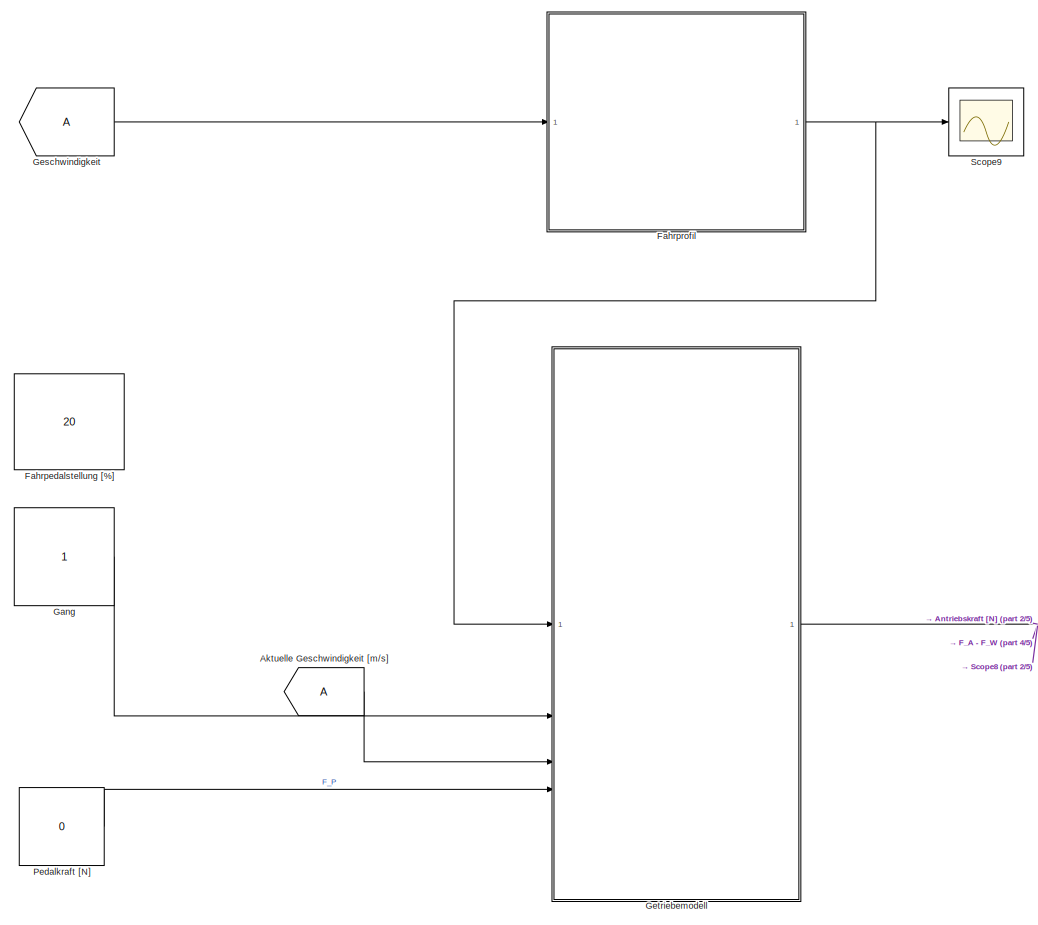
[diagram: root canvas - part 1/5, top left region]
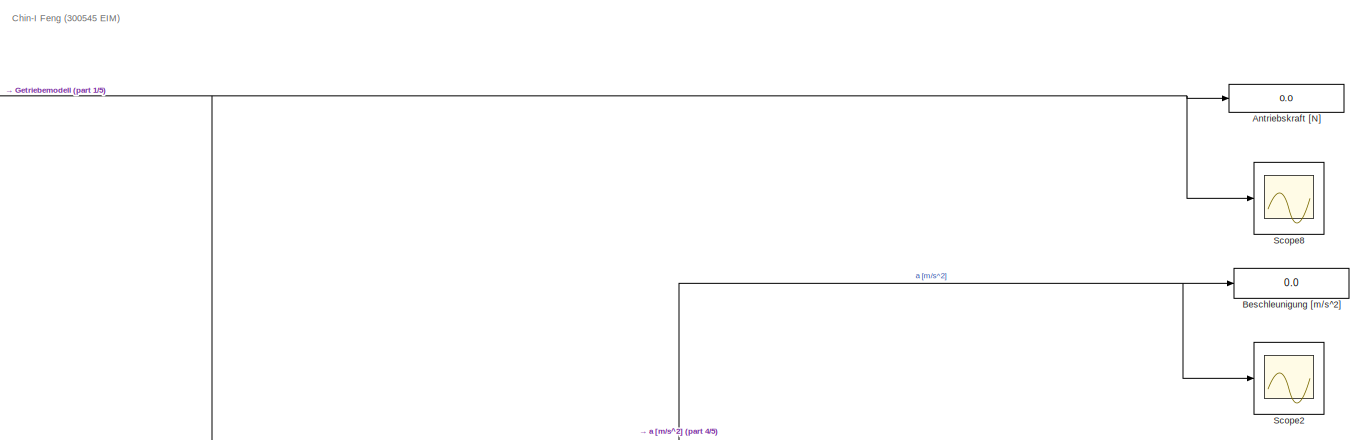
[diagram: root canvas - part 2/5, middle right region]
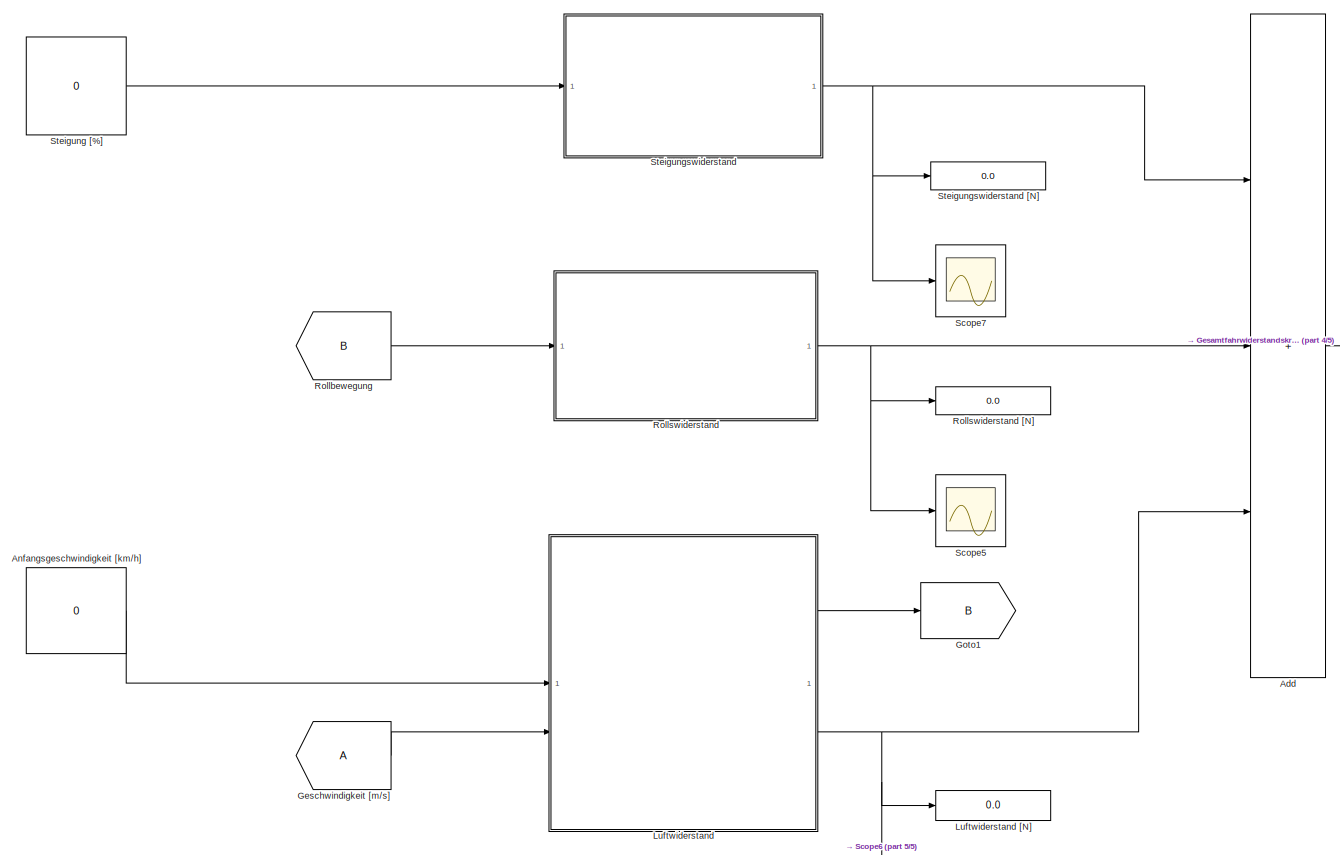
[diagram: root canvas - part 3/5, bottom left region]
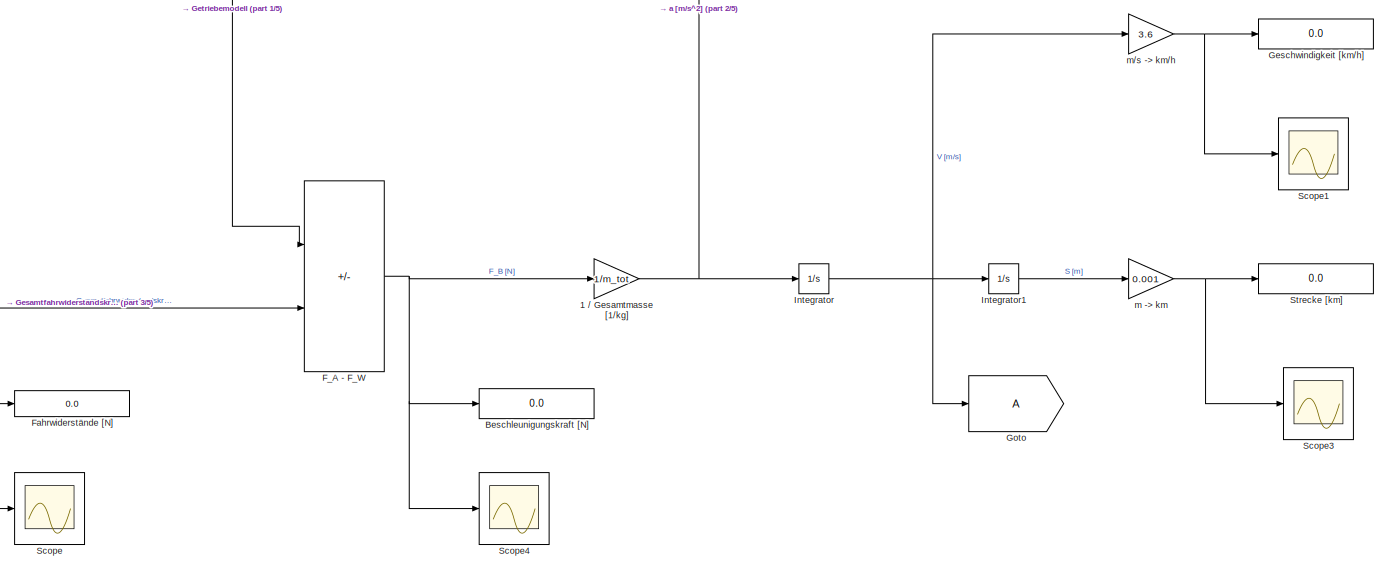
[diagram: root canvas - part 4/5, middle right region]
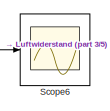
[diagram: root canvas - part 5/5, bottom center region]
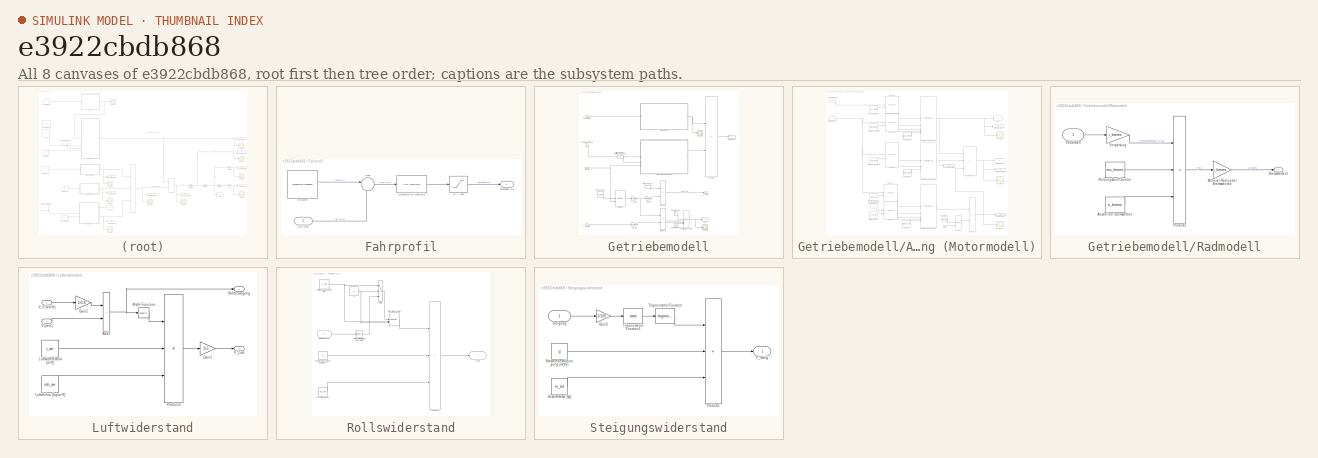
[diagram: thumbnail index - all 8 canvases of the model, root first then tree order]
MODEL slx_e3922cbdb868
KIND model
CONFIG AbsTol = auto
CONFIG EnableMultiTasking = off
CONFIG FixedStep = ts
CONFIG InitFcn = vehicle_parameter_Mercedes_A180
CONFIG MaxStep = auto
CONFIG MinStep = auto
CONFIG RelTol = 1e-3
CONFIG SampleTimeConstraint = Unconstrained
CONFIG SolverName = FixedStepAuto
CONFIG StartTime = 0.0
CONFIG StopTime = 500.0
BLOCK [Gain] 1 // Gesamtmasse [1//kg]
  Gain = 1/m_tot
BLOCK [Sum] Add
  IconShape = rectangular
  Inputs = +++
BLOCK [From] Aktuelle Geschwindigkeit [m//s]
BLOCK [Constant] Anfangsgeschwindigkeit [km//h]
  SampleTime = 1
  Value = 0
BLOCK [Display] Antriebskraft [N]
  Decimation = 1
BLOCK [Display] Beschleunigung [m//s^2]
  Decimation = 1
BLOCK [Display] Beschleunigungskraft [N]
  Decimation = 1
BLOCK [Sum] F_A - F_W
  IconShape = rectangular
  Inputs = +-
BLOCK [Constant] Fahrpedalstellung [%]
  SampleTime = 1
  Value = 20
BLOCK [SubSystem] Fahrprofil
BLOCK [Reference] Fahrprofil/Discrete PID Controller  REF=slpidlib/PID Controller
  LibrarySourceBlock = simulink/Discrete/Discrete PID Controller
  SourceBlock = slpidlib/PID Controller
  SourceType = PID 1dof
BLOCK [Outport] Fahrprofil/Fahrpedal [%]
BLOCK [Reference] Fahrprofil/Sollprofil  REF=simulink/Sources/Repeating
Sequence
  SourceBlock = simulink/Sources/Repeating\nSequence
  SourceType = Repeating table
BLOCK [Sum] Fahrprofil/Sum
  Inputs = |+-
BLOCK [Saturate] Fahrprofil/[0 ,,, 100]
  LowerLimit = 0
  UpperLimit = 100
BLOCK [Inport] Fahrprofil/v_ist [m//s]
BLOCK [Display] Fahrwiderstände [N]
  Decimation = 1
BLOCK [Constant] Gang
  SampleTime = 1
BLOCK [From] Geschwindigkeit
BLOCK [Display] Geschwindigkeit [km//h]
  Decimation = 1
BLOCK [From] Geschwindigkeit [m//s]
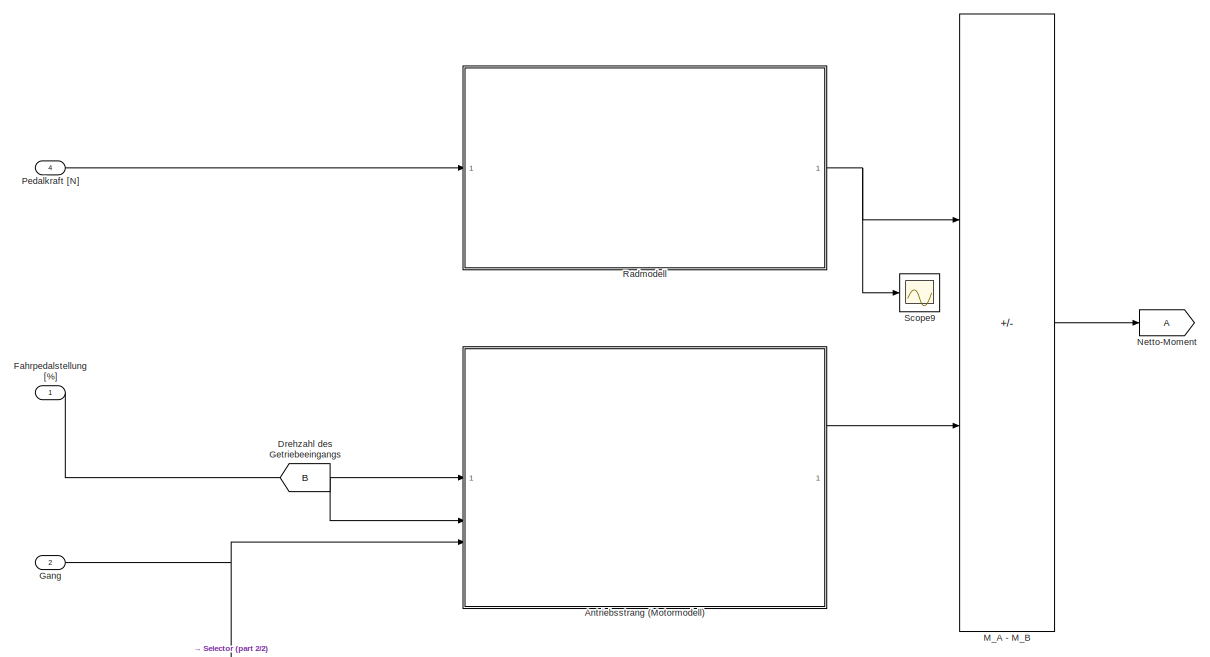
[diagram: Getriebemodell - part 1/2, full width, top band]
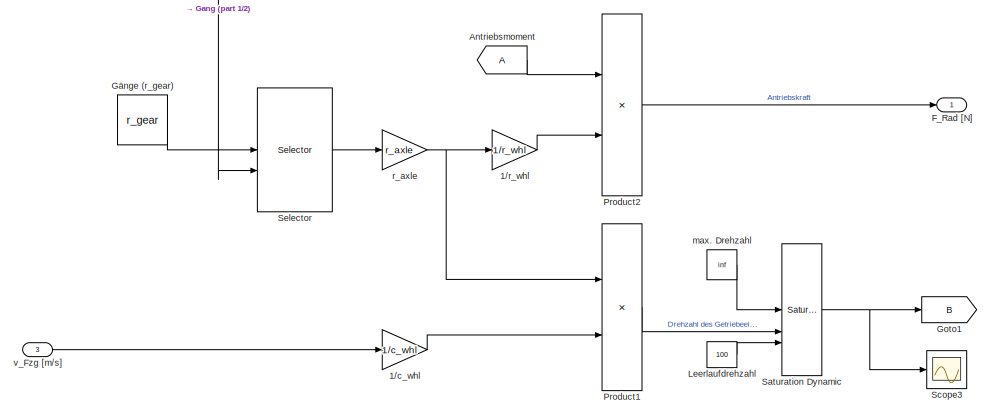
[diagram: Getriebemodell - part 2/2, full width, bottom band]
BLOCK [SubSystem] Getriebemodell
BLOCK [Gain] Getriebemodell/1//c_whl
  Gain = 1/c_whl
BLOCK [Gain] Getriebemodell/1//r_whl
  Gain = 1/r_whl
BLOCK [From] Getriebemodell/Antriebsmoment
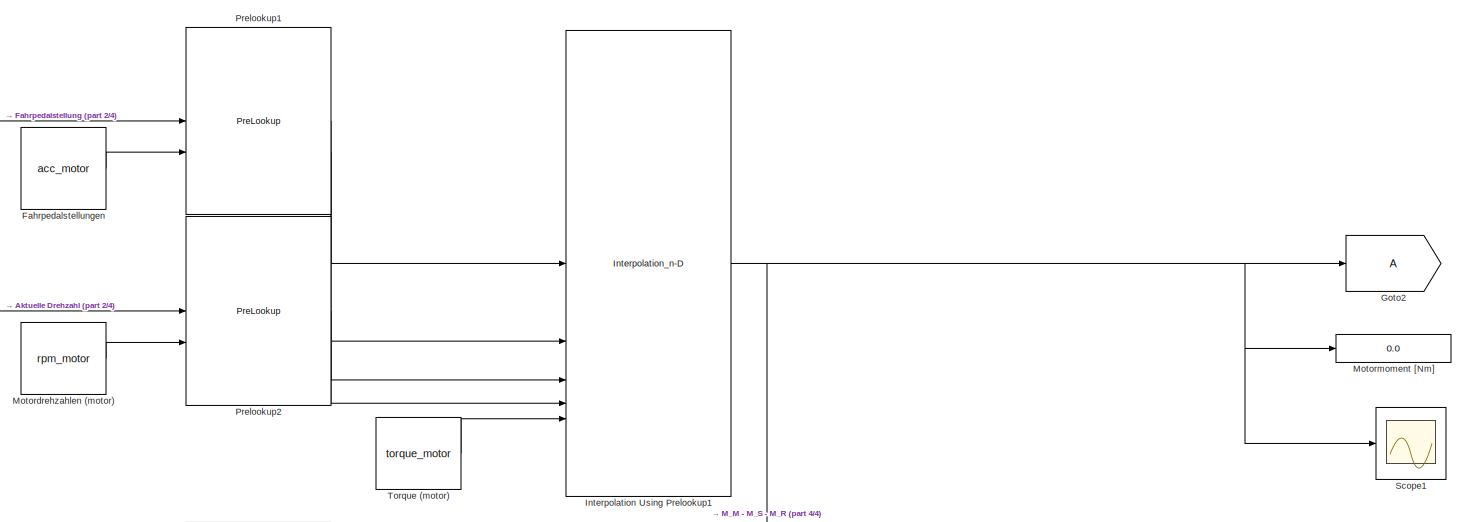
[diagram: Getriebemodell/Antriebsstrang (Motormodell) - part 1/4, full width, top band]
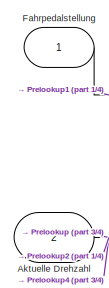
[diagram: Getriebemodell/Antriebsstrang (Motormodell) - part 2/4, top left region]
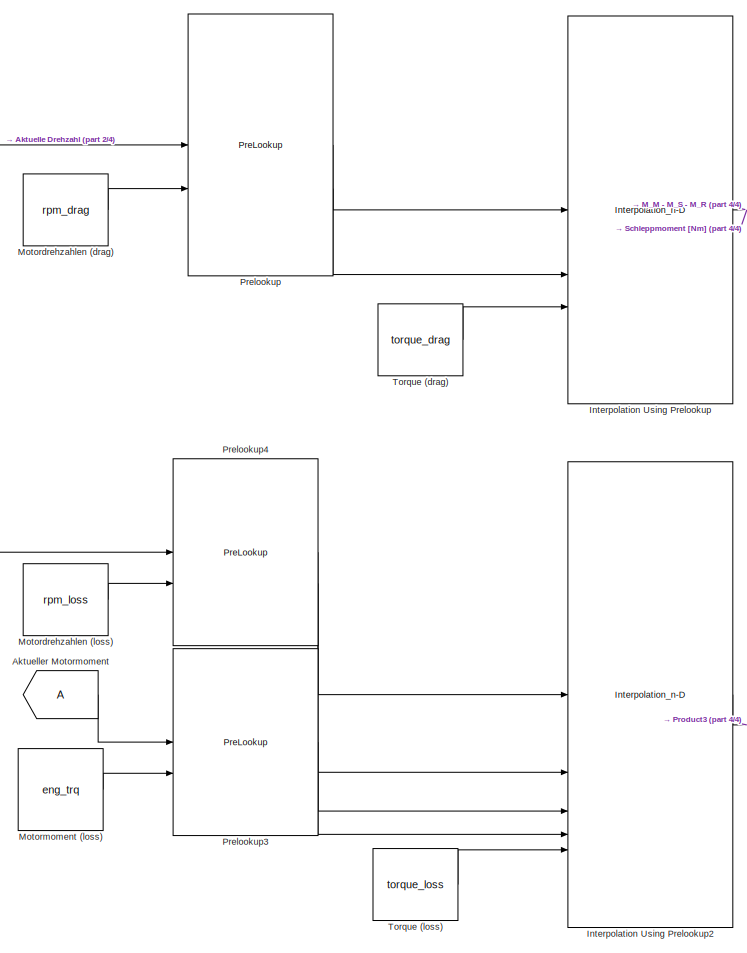
[diagram: Getriebemodell/Antriebsstrang (Motormodell) - part 3/4, central region]
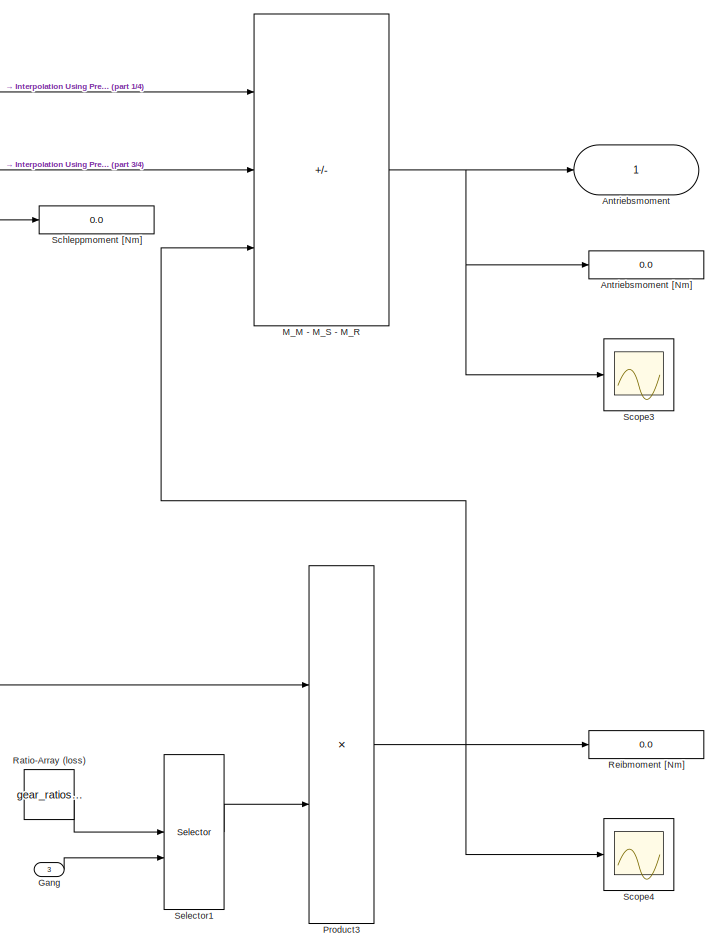
[diagram: Getriebemodell/Antriebsstrang (Motormodell) - part 4/4, bottom right region]
BLOCK [SubSystem] Getriebemodell/Antriebsstrang (Motormodell)
BLOCK [Inport] Getriebemodell/Antriebsstrang (Motormodell)/Aktuelle Drehzahl
  Port = 2
BLOCK [From] Getriebemodell/Antriebsstrang (Motormodell)/Aktueller Motormoment
BLOCK [Outport] Getriebemodell/Antriebsstrang (Motormodell)/Antriebsmoment 
BLOCK [Display] Getriebemodell/Antriebsstrang (Motormodell)/Antriebsmoment [Nm]
  Decimation = 1
BLOCK [Inport] Getriebemodell/Antriebsstrang (Motormodell)/Fahrpedalstellung
BLOCK [Constant] Getriebemodell/Antriebsstrang (Motormodell)/Fahrpedalstellungen
  SampleTime = 1
  Value = acc_motor
BLOCK [Inport] Getriebemodell/Antriebsstrang (Motormodell)/Gang
  Port = 3
BLOCK [Goto] Getriebemodell/Antriebsstrang (Motormodell)/Goto2
BLOCK [Interpolation_n-D] Getriebemodell/Antriebsstrang (Motormodell)/Interpolation Using Prelookup
  InputPortMap = u0,u1,p2
  IntermediateResultsDataTypeStr = Inherit: Inherit via internal rule
  InternalRulePriority = Speed
  NumberOfTableDimensions = 1
  TableSource = Input port
  ValidIndexMayReachLast = on
BLOCK [Interpolation_n-D] Getriebemodell/Antriebsstrang (Motormodell)/Interpolation Using Prelookup1
  InputPortMap = u0,u1,u2,u3,p2
  IntermediateResultsDataTypeStr = Inherit: Inherit via internal rule
  InternalRulePriority = Speed
  TableSource = Input port
BLOCK [Interpolation_n-D] Getriebemodell/Antriebsstrang (Motormodell)/Interpolation Using Prelookup2
  InputPortMap = u0,u1,u2,u3,p2
  IntermediateResultsDataTypeStr = Inherit: Inherit via internal rule
  InternalRulePriority = Speed
  TableSource = Input port
BLOCK [Sum] Getriebemodell/Antriebsstrang (Motormodell)/M_M - M_S - M_R
  IconShape = rectangular
  Inputs = +--
BLOCK [Constant] Getriebemodell/Antriebsstrang (Motormodell)/Motordrehzahlen (drag)
  SampleTime = 1
  Value = rpm_drag
BLOCK [Constant] Getriebemodell/Antriebsstrang (Motormodell)/Motordrehzahlen (loss)
  SampleTime = 1
  Value = rpm_loss
BLOCK [Constant] Getriebemodell/Antriebsstrang (Motormodell)/Motordrehzahlen (motor)
  SampleTime = 1
  Value = rpm_motor
BLOCK [Constant] Getriebemodell/Antriebsstrang (Motormodell)/Motormoment (loss)
  SampleTime = 1
  Value = eng_trq
BLOCK [Display] Getriebemodell/Antriebsstrang (Motormodell)/Motormoment [Nm]
  Decimation = 1
BLOCK [PreLookup] Getriebemodell/Antriebsstrang (Motormodell)/Prelookup
  BeginIndexSearchUsingPreviousIndexResult = on
  BreakpointsData = [10:10:110]
  BreakpointsDataSource = Input port
  ExtrapMethod = Linear
  InputPortMap = u0,p1
BLOCK [PreLookup] Getriebemodell/Antriebsstrang (Motormodell)/Prelookup1
  BeginIndexSearchUsingPreviousIndexResult = on
  BreakpointsData = [10:10:110]
  BreakpointsDataSource = Input port
  InputPortMap = u0,p1
  UseLastBreakpoint = on
BLOCK [PreLookup] Getriebemodell/Antriebsstrang (Motormodell)/Prelookup2
  BeginIndexSearchUsingPreviousIndexResult = on
  BreakpointsData = [10:10:110]
  BreakpointsDataSource = Input port
  InputPortMap = u0,p1
BLOCK [PreLookup] Getriebemodell/Antriebsstrang (Motormodell)/Prelookup3
  BeginIndexSearchUsingPreviousIndexResult = on
  BreakpointsData = [10:10:110]
  BreakpointsDataSource = Input port
  InputPortMap = u0,p1
  UseLastBreakpoint = on
BLOCK [PreLookup] Getriebemodell/Antriebsstrang (Motormodell)/Prelookup4
  BeginIndexSearchUsingPreviousIndexResult = on
  BreakpointsData = [10:10:110]
  BreakpointsDataSource = Input port
  InputPortMap = u0,p1
  UseLastBreakpoint = on
BLOCK [Product] Getriebemodell/Antriebsstrang (Motormodell)/Product3
BLOCK [Constant] Getriebemodell/Antriebsstrang (Motormodell)/Ratio-Array (loss)
  SampleTime = 1
  Value = gear_ratios_to_neutral
BLOCK [Display] Getriebemodell/Antriebsstrang (Motormodell)/Reibmoment [Nm]
  Decimation = 1
BLOCK [Display] Getriebemodell/Antriebsstrang (Motormodell)/Schleppmoment [Nm]
  Decimation = 1
BLOCK [Scope] Getriebemodell/Antriebsstrang (Motormodell)/Scope1
  Floating = off
  NumInputPorts = 1
  ScopeSpecificationString = Simulink.scopes.TimeScopeBlockCfg('CurrentConfiguration', extmgr.ConfigurationSet(extmgr.Configuration('Core','General UI',true),extmgr.Configuration('Core','Source UI',true),extmgr.Configuration('Sources','WiredSimulink',true,'DataLoggingVariableName','ScopeData2'),extmgr.Configuration('Visuals','Time Domain',true,'SerializedDisplays',{struct('MinYLimReal','7.56414','MaxYLimReal','139.15954','YLa...<+1603ch>
BLOCK [Scope] Getriebemodell/Antriebsstrang (Motormodell)/Scope3
  Floating = off
  NumInputPorts = 1
  ScopeSpecificationString = Simulink.scopes.TimeScopeBlockCfg('CurrentConfiguration', extmgr.ConfigurationSet(extmgr.Configuration('Core','General UI',true),extmgr.Configuration('Core','Source UI',true),extmgr.Configuration('Sources','WiredSimulink',true,'DataLoggingVariableName','ScopeData5'),extmgr.Configuration('Visuals','Time Domain',true,'SerializedDisplays',{struct('MinYLimReal','-3.73503','MaxYLimReal','127.35349','YL...<+1590ch>
BLOCK [Scope] Getriebemodell/Antriebsstrang (Motormodell)/Scope4
  Floating = off
  NumInputPorts = 1
  ScopeSpecificationString = Simulink.scopes.TimeScopeBlockCfg('CurrentConfiguration', extmgr.ConfigurationSet(extmgr.Configuration('Core','General UI',true),extmgr.Configuration('Core','Source UI',true),extmgr.Configuration('Sources','WiredSimulink',true,'DataLoggingVariableName','ScopeData4'),extmgr.Configuration('Visuals','Time Domain',true,'SerializedDisplays',{struct('MinYLimReal','-3.73503','MaxYLimReal','127.35349','YL...<+1589ch>
BLOCK [Selector] Getriebemodell/Antriebsstrang (Motormodell)/Selector1
  IndexMode = Zero-based
  IndexOptions = Index vector (port)
  Indices = 1
  InputPortWidth = 8
  OutputSizes = 1
BLOCK [Constant] Getriebemodell/Antriebsstrang (Motormodell)/Torque (drag)
  SampleTime = 1
  Value = torque_drag
BLOCK [Constant] Getriebemodell/Antriebsstrang (Motormodell)/Torque (loss)
  SampleTime = 1
  Value = torque_loss
BLOCK [Constant] Getriebemodell/Antriebsstrang (Motormodell)/Torque (motor)
  SampleTime = 1
  Value = torque_motor
BLOCK [From] Getriebemodell/Drehzahl des Getriebeeingangs
  GotoTag = B
BLOCK [Outport] Getriebemodell/F_Rad [N]
BLOCK [Inport] Getriebemodell/Fahrpedalstellung [%]
BLOCK [Inport] Getriebemodell/Gang
  Port = 2
BLOCK [Goto] Getriebemodell/Goto1
  GotoTag = B
BLOCK [Constant] Getriebemodell/Gänge (r_gear)
  SampleTime = 1
  Value = r_gear
BLOCK [Constant] Getriebemodell/Leerlaufdrehzahl
  SampleTime = 1
  Value = 100
BLOCK [Sum] Getriebemodell/M_A - M_B
  IconShape = rectangular
  Inputs = -+
BLOCK [Goto] Getriebemodell/Netto-Moment
BLOCK [Inport] Getriebemodell/Pedalkraft [N]
  Port = 4
BLOCK [Product] Getriebemodell/Product1
BLOCK [Product] Getriebemodell/Product2
BLOCK [SubSystem] Getriebemodell/Radmodell
BLOCK [Constant] Getriebemodell/Radmodell/Anzahl der Bremskolben
  SampleTime = 1
  Value = n_brems
BLOCK [Outport] Getriebemodell/Radmodell/Bremsmoment
BLOCK [Gain] Getriebemodell/Radmodell/Mittlerer Radius der Bremsscheibe
  Gain = r_brems
BLOCK [Inport] Getriebemodell/Radmodell/Pedalkraft
BLOCK [Product] Getriebemodell/Radmodell/Product3
  Inputs = 3
BLOCK [Constant] Getriebemodell/Radmodell/Reibungskoeffizienten
  SampleTime = 1
  Value = mu_brems
BLOCK [Gain] Getriebemodell/Radmodell/Verstärkung
  Gain = i_brems
BLOCK [Reference] Getriebemodell/Saturation Dynamic  REF=simulink/Discontinuities/Saturation
Dynamic
  SourceBlock = simulink/Discontinuities/Saturation\nDynamic
  SourceType = Saturation Dynamic
BLOCK [Scope] Getriebemodell/Scope3
  Floating = off
  NumInputPorts = 1
  ScopeSpecificationString = Simulink.scopes.TimeScopeBlockCfg('CurrentConfiguration', extmgr.ConfigurationSet(extmgr.Configuration('Core','General UI',true),extmgr.Configuration('Core','Source UI',true),extmgr.Configuration('Sources','WiredSimulink',true,'DataLoggingVariableName','ScopeData6'),extmgr.Configuration('Visuals','Time Domain',true,'SerializedDisplays',{struct('MinYLimReal','7.96997','MaxYLimReal','928.27025','YLa...<+1624ch>
BLOCK [Scope] Getriebemodell/Scope9
  Floating = off
  NumInputPorts = 1
  ScopeSpecificationString = Simulink.scopes.TimeScopeBlockCfg('CurrentConfiguration', extmgr.ConfigurationSet(extmgr.Configuration('Core','General UI',true),extmgr.Configuration('Core','Source UI',true),extmgr.Configuration('Sources','WiredSimulink',true,'DataLoggingVariableName','ScopeData2'),extmgr.Configuration('Visuals','Time Domain',true,'SerializedDisplays',{struct('MinYLimReal','-1.00000','MaxYLimReal','1.00000','YLab...<+1609ch>
BLOCK [Selector] Getriebemodell/Selector
  IndexMode = Zero-based
  IndexOptions = Index vector (port)
  Indices = 1
  InputPortWidth = 8
  OutputSizes = 1
BLOCK [Constant] Getriebemodell/max. Drehzahl
  SampleTime = 1
  Value = inf
BLOCK [Gain] Getriebemodell/r_axle
  Gain = r_axle
BLOCK [Inport] Getriebemodell/v_Fzg [m//s]
  Port = 3
BLOCK [Goto] Goto
BLOCK [Goto] Goto1
  GotoTag = B
BLOCK [Integrator] Integrator
BLOCK [Integrator] Integrator1
BLOCK [SubSystem] Luftwiderstand
BLOCK [Display] Luftwiderstand [N] 
  Decimation = 1
BLOCK [Sum] Luftwiderstand/Add3
  IconShape = rectangular
BLOCK [Outport] Luftwiderstand/F_Luft
  Port = 2
BLOCK [Gain] Luftwiderstand/Gain1
  Gain = 0.5
BLOCK [Gain] Luftwiderstand/Gain2
  Gain = 1/3.6
BLOCK [Constant] Luftwiderstand/Luftdichte [kg//m^3]
  SampleTime = 1
  Value = roh_air
BLOCK [Constant] Luftwiderstand/Luftwiderstand [m^2]
  SampleTime = 1
  Value = r_air
BLOCK [Math] Luftwiderstand/Math Function
  Operator = magnitude^2
BLOCK [Product] Luftwiderstand/Product3
  Inputs = 3
BLOCK [Outport] Luftwiderstand/Rollbewegung
BLOCK [Inport] Luftwiderstand/V [m//s]
  Port = 2
BLOCK [Inport] Luftwiderstand/V_0 [km//h]
BLOCK [Constant] Pedalkraft [N]
  SampleTime = 1
  Value = 0
BLOCK [From] Rollbewegung
  GotoTag = B
BLOCK [SubSystem] Rollswiderstand
BLOCK [Display] Rollswiderstand [N]
  Decimation = 1
BLOCK [Constant] Rollswiderstand/0
  SampleTime = 1
  Value = 0
BLOCK [Outport] Rollswiderstand/F_Roll
BLOCK [Constant] Rollswiderstand/Gesamtmasse [kg]
  SampleTime = 1
  Value = m_tot
BLOCK [Reference] Rollswiderstand/Gibt es Rollbewegung der Reifen?  REF=simulink/Logic and Bit
Operations/Compare
To Constant
  SourceBlock = simulink/Logic and Bit\nOperations/Compare\nTo Constant
  SourceType = Compare To Constant
BLOCK [Product] Rollswiderstand/Product3
  Inputs = 3
BLOCK [Inport] Rollswiderstand/Rollbewegung?
BLOCK [Constant] Rollswiderstand/Rollwiderstandskoeffizient
  SampleTime = 1
  Value = r_roll
BLOCK [Reference] Rollswiderstand/Saturation Dynamic  REF=simulink/Discontinuities/Saturation
Dynamic
  SourceBlock = simulink/Discontinuities/Saturation\nDynamic
  SourceType = Saturation Dynamic
BLOCK [Constant] Rollswiderstand/Schwerebeschleunigung [m//s^2]
  SampleTime = 1
  Value = g
BLOCK [Switch] Rollswiderstand/Switch
  Criteria = u2 > Threshold
  InputSameDT = off
  SaturateOnIntegerOverflow = off
BLOCK [Scope] Scope
  Floating = off
  NumInputPorts = 1
  ScopeSpecificationString = Simulink.scopes.TimeScopeBlockCfg('CurrentConfiguration', extmgr.ConfigurationSet(extmgr.Configuration('Core','General UI',true),extmgr.Configuration('Core','Source UI',true),extmgr.Configuration('Sources','WiredSimulink',true),extmgr.Configuration('Visuals','Time Domain',true,'SerializedDisplays',{struct('MinYLimReal','-434.40344','MaxYLimReal','3909.63094','YLabelReal','','MinYLimMag',' 0.00000'...<+1494ch>
BLOCK [Scope] Scope1
  Floating = off
  NumInputPorts = 1
  ScopeSpecificationString = Simulink.scopes.TimeScopeBlockCfg('CurrentConfiguration', extmgr.ConfigurationSet(extmgr.Configuration('Core','General UI',true),extmgr.Configuration('Core','Source UI',true),extmgr.Configuration('Sources','WiredSimulink',true,'DataLoggingVariableName','ScopeData1'),extmgr.Configuration('Visuals','Time Domain',true,'SerializedDisplays',{struct('MinYLimReal','-52.40242','MaxYLimReal','471.62177','Y...<+1632ch>
BLOCK [Scope] Scope2
  Floating = off
  NumInputPorts = 1
  ScopeSpecificationString = Simulink.scopes.TimeScopeBlockCfg('CurrentConfiguration', extmgr.ConfigurationSet(extmgr.Configuration('Core','General UI',true),extmgr.Configuration('Core','Source UI',true),extmgr.Configuration('Sources','WiredSimulink',true,'DataLoggingVariableName','ScopeData2'),extmgr.Configuration('Visuals','Time Domain',true,'SerializedDisplays',{struct('MinYLimReal','-3.3372','MaxYLimReal','2.22648','YLabe...<+1453ch>
BLOCK [Scope] Scope3
  Floating = off
  NumInputPorts = 1
  ScopeSpecificationString = Simulink.scopes.TimeScopeBlockCfg('CurrentConfiguration', extmgr.ConfigurationSet(extmgr.Configuration('Core','General UI',true),extmgr.Configuration('Core','Source UI',true),extmgr.Configuration('Sources','WiredSimulink',true,'DataLoggingVariableName','ScopeData3'),extmgr.Configuration('Visuals','Time Domain',true,'SerializedDisplays',{struct('MinYLimReal','-5.0441','MaxYLimReal','45.39693','YLab...<+1457ch>
BLOCK [Scope] Scope4
  Floating = off
  NumInputPorts = 1
  ScopeSpecificationString = Simulink.scopes.TimeScopeBlockCfg('CurrentConfiguration', extmgr.ConfigurationSet(extmgr.Configuration('Core','General UI',true),extmgr.Configuration('Core','Source UI',true),extmgr.Configuration('Sources','WiredSimulink',true,'DataLoggingVariableName','ScopeData4'),extmgr.Configuration('Visuals','Time Domain',true,'SerializedDisplays',{struct('MinYLimReal','-301.67865','MaxYLimReal','2715.10789',...<+1473ch>
BLOCK [Scope] Scope5
  Floating = off
  NumInputPorts = 1
  ScopeSpecificationString = Simulink.scopes.TimeScopeBlockCfg('CurrentConfiguration', extmgr.ConfigurationSet(extmgr.Configuration('Core','General UI',true),extmgr.Configuration('Core','Source UI',true),extmgr.Configuration('Sources','WiredSimulink',true,'DataLoggingVariableName','ScopeData1'),extmgr.Configuration('Visuals','Time Domain',true,'SerializedDisplays',{struct('MinYLimReal','-22.14914','MaxYLimReal','199.34227','Y...<+1592ch>
BLOCK [Scope] Scope6
  Floating = off
  NumInputPorts = 1
  ScopeSpecificationString = Simulink.scopes.TimeScopeBlockCfg('CurrentConfiguration', extmgr.ConfigurationSet(extmgr.Configuration('Core','General UI',true),extmgr.Configuration('Core','Source UI',true),extmgr.Configuration('Sources','WiredSimulink',true,'DataLoggingVariableName','ScopeData2'),extmgr.Configuration('Visuals','Time Domain',true,'SerializedDisplays',{struct('MinYLimReal','-606.13672','MaxYLimReal','5455.23051',...<+1601ch>
BLOCK [Scope] Scope7
  Floating = off
  NumInputPorts = 1
  ScopeSpecificationString = Simulink.scopes.TimeScopeBlockCfg('CurrentConfiguration', extmgr.ConfigurationSet(extmgr.Configuration('Core','General UI',true),extmgr.Configuration('Core','Source UI',true),extmgr.Configuration('Sources','WiredSimulink',true,'DataLoggingVariableName','ScopeData7'),extmgr.Configuration('Visuals','Time Domain',true,'SerializedDisplays',{struct('MinYLimReal','-1.00000','MaxYLimReal','1.00000','YLab...<+1586ch>
BLOCK [Scope] Scope8
  Floating = off
  NumInputPorts = 1
  ScopeSpecificationString = Simulink.scopes.TimeScopeBlockCfg('CurrentConfiguration', extmgr.ConfigurationSet(extmgr.Configuration('Core','General UI',true),extmgr.Configuration('Core','Source UI',true),extmgr.Configuration('Sources','WiredSimulink',true,'DataLoggingVariableName','ScopeData1'),extmgr.Configuration('Visuals','Time Domain',true,'SerializedDisplays',{struct('MinYLimReal','-1262.44797','MaxYLimReal','5867.78499'...<+1484ch>
BLOCK [Scope] Scope9
  Floating = off
  NumInputPorts = 1
  ScopeSpecificationString = Simulink.scopes.TimeScopeBlockCfg('CurrentConfiguration', extmgr.ConfigurationSet(extmgr.Configuration('Core','General UI',true),extmgr.Configuration('Core','Source UI',true),extmgr.Configuration('Sources','WiredSimulink',true,'DataLoggingVariableName','ScopeData1'),extmgr.Configuration('Visuals','Time Domain',true,'SerializedDisplays',{struct('MinYLimReal','-12.5','MaxYLimReal','112.5','YLabelRea...<+1596ch>
BLOCK [Constant] Steigung [%]
  SampleTime = 1
  Value = 0
BLOCK [SubSystem] Steigungswiderstand
BLOCK [Display] Steigungswiderstand [N]
  Decimation = 1
BLOCK [Outport] Steigungswiderstand/F_Steig
BLOCK [Gain] Steigungswiderstand/Gain3
  Gain = 1/100
BLOCK [Constant] Steigungswiderstand/Gesamtmasse [kg]
  SampleTime = 1
  Value = m_tot
BLOCK [Product] Steigungswiderstand/Product1
  Inputs = 3
BLOCK [Constant] Steigungswiderstand/Schwerebeschleunigung [m//s^2]
  SampleTime = 1
  Value = g
BLOCK [Inport] Steigungswiderstand/Steigung
BLOCK [Trigonometry] Steigungswiderstand/Trigonometric Function
BLOCK [Trigonometry] Steigungswiderstand/Trigonometric Function1
  Operator = atan
BLOCK [Display] Strecke [km]
  Decimation = 1
BLOCK [Gain] m -> km
  Gain = 0.001
BLOCK [Gain] m//s -> km//h
  Gain = 3.6
ANNOTATION (root): Chin-I Feng (300545 EIM)
NET 1 // Gesamtmasse [1//kg]:1 -> Beschleunigung [m//s^2]:1, Integrator:1, Scope2:1
NET Add:1 -> F_A - F_W:2, Fahrwiderstände [N]:1, Scope:1
LINE Aktuelle Geschwindigkeit [m//s]:1 -> Getriebemodell:3
LINE Anfangsgeschwindigkeit [km//h]:1 -> Luftwiderstand:1
NET F_A - F_W:1 -> 1 // Gesamtmasse [1//kg]:1, Beschleunigungskraft [N]:1, Scope4:1
LINE Fahrprofil/Discrete PID Controller:1 -> Fahrprofil/[0 ,,, 100]:1
LINE Fahrprofil/Sollprofil:1 -> Fahrprofil/Sum:1
LINE Fahrprofil/Sum:1 -> Fahrprofil/Discrete PID Controller:1
LINE Fahrprofil/[0 ,,, 100]:1 -> Fahrprofil/Fahrpedal [%]:1
LINE Fahrprofil/v_ist [m//s]:1 -> Fahrprofil/Sum:2
NET Fahrprofil:1 -> Getriebemodell:1, Scope9:1
LINE Gang:1 -> Getriebemodell:2
LINE Geschwindigkeit [m//s]:1 -> Luftwiderstand:2
LINE Geschwindigkeit:1 -> Fahrprofil:1
LINE Getriebemodell/1//c_whl:1 -> Getriebemodell/Product1:2
LINE Getriebemodell/1//r_whl:1 -> Getriebemodell/Product2:2
LINE Getriebemodell/Antriebsmoment:1 -> Getriebemodell/Product2:1
NET Getriebemodell/Antriebsstrang (Motormodell)/Aktuelle Drehzahl:1 -> Getriebemodell/Antriebsstrang (Motormodell)/Prelookup2:1, Getriebemodell/Antriebsstrang (Motormodell)/Prelookup4:1, Getriebemodell/Antriebsstrang (Motormodell)/Prelookup:1
LINE Getriebemodell/Antriebsstrang (Motormodell)/Aktueller Motormoment:1 -> Getriebemodell/Antriebsstrang (Motormodell)/Prelookup3:1
LINE Getriebemodell/Antriebsstrang (Motormodell)/Fahrpedalstellung:1 -> Getriebemodell/Antriebsstrang (Motormodell)/Prelookup1:1
LINE Getriebemodell/Antriebsstrang (Motormodell)/Fahrpedalstellungen:1 -> Getriebemodell/Antriebsstrang (Motormodell)/Prelookup1:2
LINE Getriebemodell/Antriebsstrang (Motormodell)/Gang:1 -> Getriebemodell/Antriebsstrang (Motormodell)/Selector1:2
NET Getriebemodell/Antriebsstrang (Motormodell)/Interpolation Using Prelookup1:1 -> Getriebemodell/Antriebsstrang (Motormodell)/Goto2:1, Getriebemodell/Antriebsstrang (Motormodell)/M_M - M_S - M_R:1, Getriebemodell/Antriebsstrang (Motormodell)/Motormoment [Nm]:1, Getriebemodell/Antriebsstrang (Motormodell)/Scope1:1
LINE Getriebemodell/Antriebsstrang (Motormodell)/Interpolation Using Prelookup2:1 -> Getriebemodell/Antriebsstrang (Motormodell)/Product3:1
NET Getriebemodell/Antriebsstrang (Motormodell)/Interpolation Using Prelookup:1 -> Getriebemodell/Antriebsstrang (Motormodell)/M_M - M_S - M_R:2, Getriebemodell/Antriebsstrang (Motormodell)/Schleppmoment [Nm]:1
NET Getriebemodell/Antriebsstrang (Motormodell)/M_M - M_S - M_R:1 -> Getriebemodell/Antriebsstrang (Motormodell)/Antriebsmoment :1, Getriebemodell/Antriebsstrang (Motormodell)/Antriebsmoment [Nm]:1, Getriebemodell/Antriebsstrang (Motormodell)/Scope3:1
LINE Getriebemodell/Antriebsstrang (Motormodell)/Motordrehzahlen (drag):1 -> Getriebemodell/Antriebsstrang (Motormodell)/Prelookup:2
LINE Getriebemodell/Antriebsstrang (Motormodell)/Motordrehzahlen (loss):1 -> Getriebemodell/Antriebsstrang (Motormodell)/Prelookup4:2
LINE Getriebemodell/Antriebsstrang (Motormodell)/Motordrehzahlen (motor):1 -> Getriebemodell/Antriebsstrang (Motormodell)/Prelookup2:2
LINE Getriebemodell/Antriebsstrang (Motormodell)/Motormoment (loss):1 -> Getriebemodell/Antriebsstrang (Motormodell)/Prelookup3:2
LINE Getriebemodell/Antriebsstrang (Motormodell)/Prelookup1:1 -> Getriebemodell/Antriebsstrang (Motormodell)/Interpolation Using Prelookup1:1
LINE Getriebemodell/Antriebsstrang (Motormodell)/Prelookup1:2 -> Getriebemodell/Antriebsstrang (Motormodell)/Interpolation Using Prelookup1:2
LINE Getriebemodell/Antriebsstrang (Motormodell)/Prelookup2:1 -> Getriebemodell/Antriebsstrang (Motormodell)/Interpolation Using Prelookup1:3
LINE Getriebemodell/Antriebsstrang (Motormodell)/Prelookup2:2 -> Getriebemodell/Antriebsstrang (Motormodell)/Interpolation Using Prelookup1:4
LINE Getriebemodell/Antriebsstrang (Motormodell)/Prelookup3:1 -> Getriebemodell/Antriebsstrang (Motormodell)/Interpolation Using Prelookup2:3
LINE Getriebemodell/Antriebsstrang (Motormodell)/Prelookup3:2 -> Getriebemodell/Antriebsstrang (Motormodell)/Interpolation Using Prelookup2:4
LINE Getriebemodell/Antriebsstrang (Motormodell)/Prelookup4:1 -> Getriebemodell/Antriebsstrang (Motormodell)/Interpolation Using Prelookup2:1
LINE Getriebemodell/Antriebsstrang (Motormodell)/Prelookup4:2 -> Getriebemodell/Antriebsstrang (Motormodell)/Interpolation Using Prelookup2:2
LINE Getriebemodell/Antriebsstrang (Motormodell)/Prelookup:1 -> Getriebemodell/Antriebsstrang (Motormodell)/Interpolation Using Prelookup:1
LINE Getriebemodell/Antriebsstrang (Motormodell)/Prelookup:2 -> Getriebemodell/Antriebsstrang (Motormodell)/Interpolation Using Prelookup:2
NET Getriebemodell/Antriebsstrang (Motormodell)/Product3:1 -> Getriebemodell/Antriebsstrang (Motormodell)/M_M - M_S - M_R:3, Getriebemodell/Antriebsstrang (Motormodell)/Reibmoment [Nm]:1, Getriebemodell/Antriebsstrang (Motormodell)/Scope4:1
LINE Getriebemodell/Antriebsstrang (Motormodell)/Ratio-Array (loss):1 -> Getriebemodell/Antriebsstrang (Motormodell)/Selector1:1
LINE Getriebemodell/Antriebsstrang (Motormodell)/Selector1:1 -> Getriebemodell/Antriebsstrang (Motormodell)/Product3:2
LINE Getriebemodell/Antriebsstrang (Motormodell)/Torque (drag):1 -> Getriebemodell/Antriebsstrang (Motormodell)/Interpolation Using Prelookup:3
LINE Getriebemodell/Antriebsstrang (Motormodell)/Torque (loss):1 -> Getriebemodell/Antriebsstrang (Motormodell)/Interpolation Using Prelookup2:5
LINE Getriebemodell/Antriebsstrang (Motormodell)/Torque (motor):1 -> Getriebemodell/Antriebsstrang (Motormodell)/Interpolation Using Prelookup1:5
LINE Getriebemodell/Antriebsstrang (Motormodell):1 -> Getriebemodell/M_A - M_B:2
LINE Getriebemodell/Drehzahl des Getriebeeingangs:1 -> Getriebemodell/Antriebsstrang (Motormodell):2
LINE Getriebemodell/Fahrpedalstellung [%]:1 -> Getriebemodell/Antriebsstrang (Motormodell):1
NET Getriebemodell/Gang:1 -> Getriebemodell/Antriebsstrang (Motormodell):3, Getriebemodell/Selector:2
LINE Getriebemodell/Gänge (r_gear):1 -> Getriebemodell/Selector:1
LINE Getriebemodell/Leerlaufdrehzahl:1 -> Getriebemodell/Saturation Dynamic:3
LINE Getriebemodell/M_A - M_B:1 -> Getriebemodell/Netto-Moment:1
LINE Getriebemodell/Pedalkraft [N]:1 -> Getriebemodell/Radmodell:1
LINE Getriebemodell/Product1:1 -> Getriebemodell/Saturation Dynamic:2
LINE Getriebemodell/Product2:1 -> Getriebemodell/F_Rad [N]:1
LINE Getriebemodell/Radmodell/Anzahl der Bremskolben:1 -> Getriebemodell/Radmodell/Product3:3
LINE Getriebemodell/Radmodell/Mittlerer Radius der Bremsscheibe:1 -> Getriebemodell/Radmodell/Bremsmoment:1
LINE Getriebemodell/Radmodell/Pedalkraft:1 -> Getriebemodell/Radmodell/Verstärkung:1
LINE Getriebemodell/Radmodell/Product3:1 -> Getriebemodell/Radmodell/Mittlerer Radius der Bremsscheibe:1
LINE Getriebemodell/Radmodell/Reibungskoeffizienten:1 -> Getriebemodell/Radmodell/Product3:2
LINE Getriebemodell/Radmodell/Verstärkung:1 -> Getriebemodell/Radmodell/Product3:1
NET Getriebemodell/Radmodell:1 -> Getriebemodell/M_A - M_B:1, Getriebemodell/Scope9:1
NET Getriebemodell/Saturation Dynamic:1 -> Getriebemodell/Goto1:1, Getriebemodell/Scope3:1
LINE Getriebemodell/Selector:1 -> Getriebemodell/r_axle:1
LINE Getriebemodell/max. Drehzahl:1 -> Getriebemodell/Saturation Dynamic:1
NET Getriebemodell/r_axle:1 -> Getriebemodell/1//r_whl:1, Getriebemodell/Product1:1
LINE Getriebemodell/v_Fzg [m//s]:1 -> Getriebemodell/1//c_whl:1
NET Getriebemodell:1 -> Antriebskraft [N]:1, F_A - F_W:1, Scope8:1
LINE Integrator1:1 -> m -> km:1
NET Integrator:1 -> Goto:1, Integrator1:1, m//s -> km//h:1
NET Luftwiderstand/Add3:1 -> Luftwiderstand/Math Function:1, Luftwiderstand/Rollbewegung:1
LINE Luftwiderstand/Gain1:1 -> Luftwiderstand/F_Luft:1
LINE Luftwiderstand/Gain2:1 -> Luftwiderstand/Add3:1
LINE Luftwiderstand/Luftdichte [kg//m^3]:1 -> Luftwiderstand/Product3:3
LINE Luftwiderstand/Luftwiderstand [m^2]:1 -> Luftwiderstand/Product3:2
LINE Luftwiderstand/Math Function:1 -> Luftwiderstand/Product3:1
LINE Luftwiderstand/Product3:1 -> Luftwiderstand/Gain1:1
LINE Luftwiderstand/V [m//s]:1 -> Luftwiderstand/Add3:2
LINE Luftwiderstand/V_0 [km//h]:1 -> Luftwiderstand/Gain2:1
LINE Luftwiderstand:1 -> Goto1:1
NET Luftwiderstand:2 -> Add:3, Luftwiderstand [N] :1, Scope6:1
LINE Pedalkraft [N]:1 -> Getriebemodell:4
LINE Rollbewegung:1 -> Rollswiderstand:1
NET Rollswiderstand/0:1 -> Rollswiderstand/Saturation Dynamic:3, Rollswiderstand/Switch:2
LINE Rollswiderstand/Gesamtmasse [kg]:1 -> Rollswiderstand/Product3:3
LINE Rollswiderstand/Gibt es Rollbewegung der Reifen?:1 -> Rollswiderstand/Switch:3
LINE Rollswiderstand/Product3:1 -> Rollswiderstand/F_Roll:1
LINE Rollswiderstand/Rollbewegung?:1 -> Rollswiderstand/Gibt es Rollbewegung der Reifen?:1
NET Rollswiderstand/Rollwiderstandskoeffizient:1 -> Rollswiderstand/Saturation Dynamic:2, Rollswiderstand/Switch:1
LINE Rollswiderstand/Saturation Dynamic:1 -> Rollswiderstand/Product3:1
LINE Rollswiderstand/Schwerebeschleunigung [m//s^2]:1 -> Rollswiderstand/Product3:2
LINE Rollswiderstand/Switch:1 -> Rollswiderstand/Saturation Dynamic:1
NET Rollswiderstand:1 -> Add:2, Rollswiderstand [N]:1, Scope5:1
LINE Steigung [%]:1 -> Steigungswiderstand:1
LINE Steigungswiderstand/Gain3:1 -> Steigungswiderstand/Trigonometric Function1:1
LINE Steigungswiderstand/Gesamtmasse [kg]:1 -> Steigungswiderstand/Product1:3
LINE Steigungswiderstand/Product1:1 -> Steigungswiderstand/F_Steig:1
LINE Steigungswiderstand/Schwerebeschleunigung [m//s^2]:1 -> Steigungswiderstand/Product1:2
LINE Steigungswiderstand/Steigung:1 -> Steigungswiderstand/Gain3:1
LINE Steigungswiderstand/Trigonometric Function1:1 -> Steigungswiderstand/Trigonometric Function:1
LINE Steigungswiderstand/Trigonometric Function:1 -> Steigungswiderstand/Product1:1
NET Steigungswiderstand:1 -> Add:1, Scope7:1, Steigungswiderstand [N]:1
NET m -> km:1 -> Scope3:1, Strecke [km]:1
NET m//s -> km//h:1 -> Geschwindigkeit [km//h]:1, Scope1:1
note: NET lines group one-source signal fan-out (src -> all destinations, sorted); 1:1 wires keep LINE
